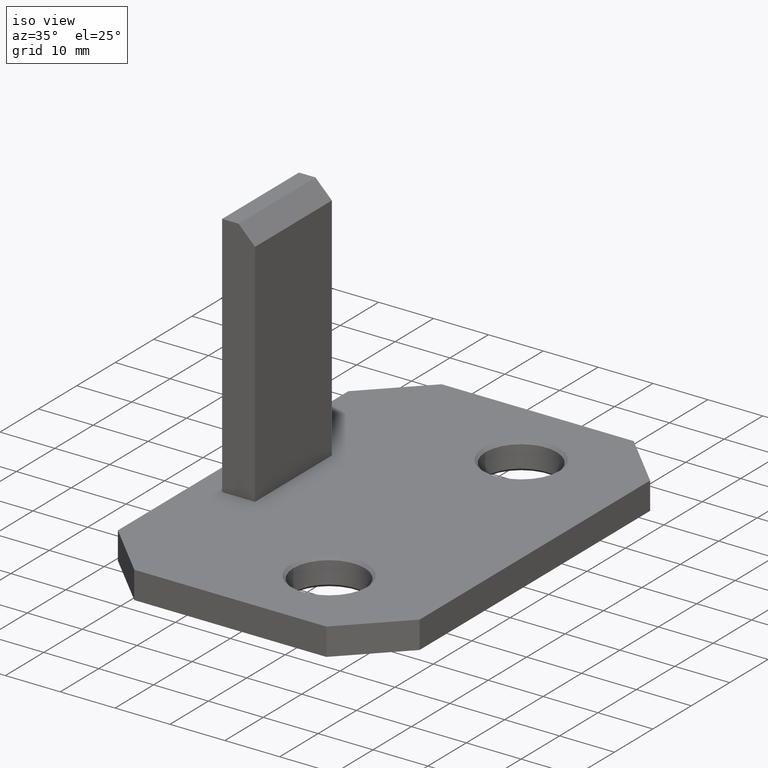
[diagram: clean part render]
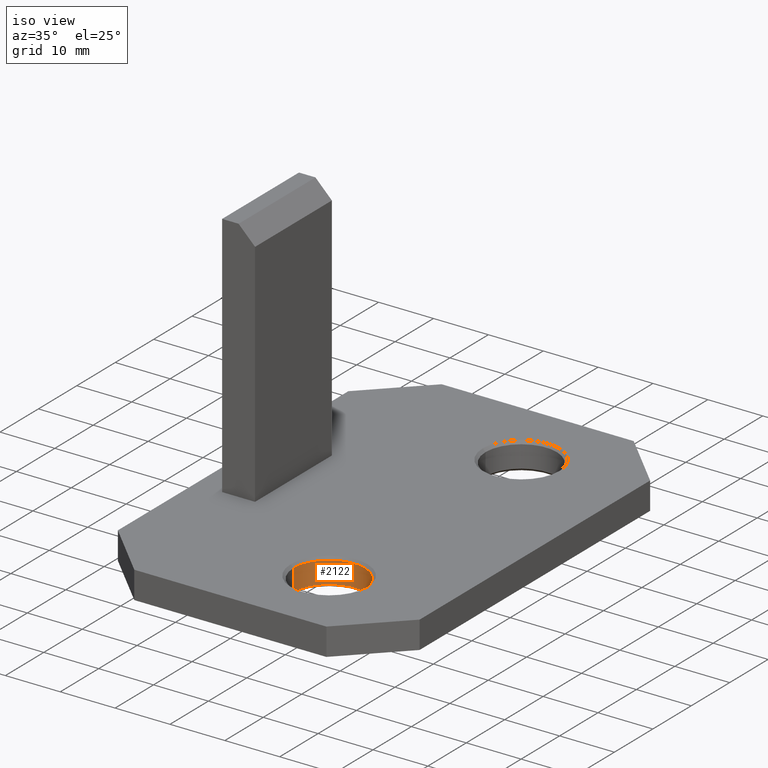
[diagram: same view with one face highlighted and labeled with its STEP entity id]
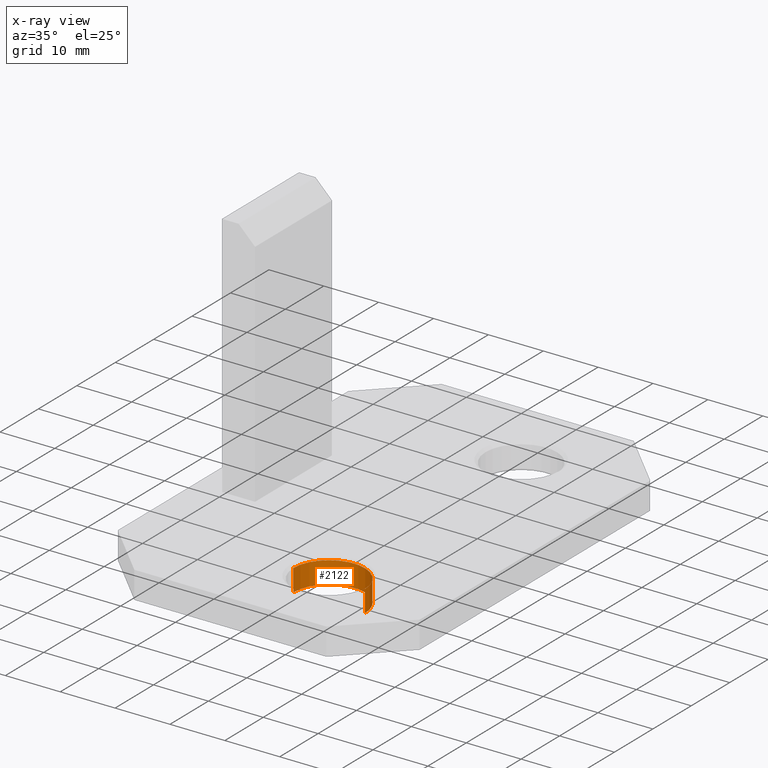
[diagram: x-ray of the same camera — body ghosted, the highlighted face saturated]
A machine part, iso view. The second image highlights one B-rep face of the part: STEP entity #2122.
The next image is the same camera in x-ray: the body ghosted, the highlighted face saturated — about 0% of this face is hidden behind the body in this view.
In plain terms, the highlighted cylindrical surface (partial cylindrical patch) has radius 6.5 mm, axis along (-0, -0, -1).
Its self-contained STEP definition (entity closure, byte-faithful):
#1851 = EDGE_CURVE ( 'NONE', #5425, #5164, #4821, .T. ) ;
#1879 = CARTESIAN_POINT ( 'NONE',  ( 7.499999999999996400, -25.00000000000000000, 0.4999999999999943900 ) ) ;
#2122 = ADVANCED_FACE ( 'NONE', ( #5499 ), #7310, .F. ) ;
#2334 = VECTOR ( 'NONE', #2493, 1000.000000000000000 ) ;
#2423 = VERTEX_POINT ( 'NONE', #3099 ) ;
#2493 = DIRECTION ( 'NONE',  ( -0.0000000000000000000, -0.0000000000000000000, -1.000000000000000000 ) ) ;
#2631 = DIRECTION ( 'NONE',  ( 1.000000000000000000, 0.0000000000000000000, 0.0000000000000000000 ) ) ;
#2741 = EDGE_CURVE ( 'NONE', #5425, #2423, #3749, .T. ) ;
#2781 = VERTEX_POINT ( 'NONE', #8917 ) ;
#3099 = CARTESIAN_POINT ( 'NONE',  ( 14.00000000000000000, -25.00000000000000000, 0.4999999999999943900 ) ) ;
#3168 = CARTESIAN_POINT ( 'NONE',  ( 14.00000000000000000, -25.00000000000000000, 4.500000000000002700 ) ) ;
#3343 = CARTESIAN_POINT ( 'NONE',  ( 0.9999999999999931200, -25.00000000000000000, 5.000000000000000000 ) ) ;
#3631 = ORIENTED_EDGE ( 'NONE', *, *, #2741, .F. ) ;
#3721 = AXIS2_PLACEMENT_3D ( 'NONE', #4262, #4329, #9522 ) ;
#3727 = CARTESIAN_POINT ( 'NONE',  ( 13.99999999999999800, -25.00000000000000000, 5.000000000000000000 ) ) ;
#3749 = LINE ( 'NONE', #3727, #7533 ) ;
#3816 = DIRECTION ( 'NONE',  ( 0.0000000000000000000, 0.0000000000000000000, 1.000000000000000000 ) ) ;
#4262 = CARTESIAN_POINT ( 'NONE',  ( 7.499999999999996400, -25.00000000000000000, 5.000000000000000000 ) ) ;
#4329 = DIRECTION ( 'NONE',  ( -0.0000000000000000000, -0.0000000000000000000, -1.000000000000000000 ) ) ;
#4337 = CIRCLE ( 'NONE', #6694, 6.500000000000002700 ) ;
#4821 = CIRCLE ( 'NONE', #6398, 6.500000000000002700 ) ;
#5117 = DIRECTION ( 'NONE',  ( -0.0000000000000000000, -0.0000000000000000000, -1.000000000000000000 ) ) ;
#5164 = VERTEX_POINT ( 'NONE', #6654 ) ;
#5309 = ORIENTED_EDGE ( 'NONE', *, *, #9052, .T. ) ;
#5425 = VERTEX_POINT ( 'NONE', #3168 ) ;
#5499 = FACE_OUTER_BOUND ( 'NONE', #6768, .T. ) ;
#5588 = ORIENTED_EDGE ( 'NONE', *, *, #1851, .T. ) ;
#6069 = LINE ( 'NONE', #3343, #2334 ) ;
#6221 = DIRECTION ( 'NONE',  ( 1.000000000000000000, 0.0000000000000000000, 0.0000000000000000000 ) ) ;
#6398 = AXIS2_PLACEMENT_3D ( 'NONE', #8515, #3816, #6221 ) ;
#6654 = CARTESIAN_POINT ( 'NONE',  ( 0.9999999999999931200, -25.00000000000000000, 4.500000000000002700 ) ) ;
#6694 = AXIS2_PLACEMENT_3D ( 'NONE', #1879, #7130, #2631 ) ;
#6768 = EDGE_LOOP ( 'NONE', ( #3631, #5588, #8895, #5309 ) ) ;
#7130 = DIRECTION ( 'NONE',  ( -0.0000000000000000000, -0.0000000000000000000, -1.000000000000000000 ) ) ;
#7310 = CYLINDRICAL_SURFACE ( 'NONE', #3721, 6.500000000000003600 ) ;
#7533 = VECTOR ( 'NONE', #5117, 1000.000000000000000 ) ;
#8515 = CARTESIAN_POINT ( 'NONE',  ( 7.499999999999996400, -25.00000000000000000, 4.500000000000002700 ) ) ;
#8895 = ORIENTED_EDGE ( 'NONE', *, *, #9013, .T. ) ;
#8917 = CARTESIAN_POINT ( 'NONE',  ( 0.9999999999999931200, -25.00000000000000000, 0.4999999999999943900 ) ) ;
#9013 = EDGE_CURVE ( 'NONE', #5164, #2781, #6069, .T. ) ;
#9052 = EDGE_CURVE ( 'NONE', #2781, #2423, #4337, .T. ) ;
#9522 = DIRECTION ( 'NONE',  ( -1.000000000000000000, 0.0000000000000000000, 0.0000000000000000000 ) ) ;